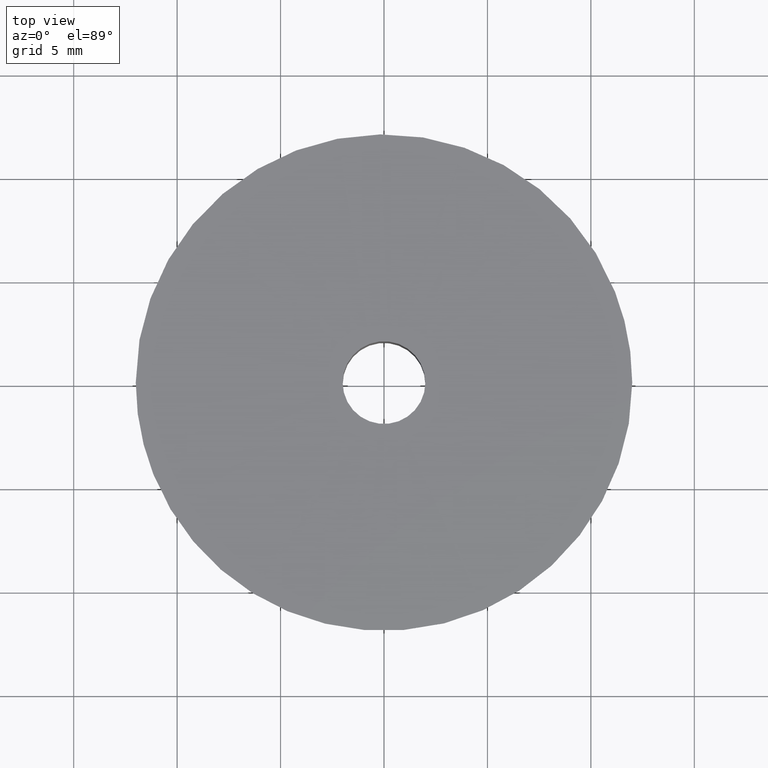
[diagram: clean part render]
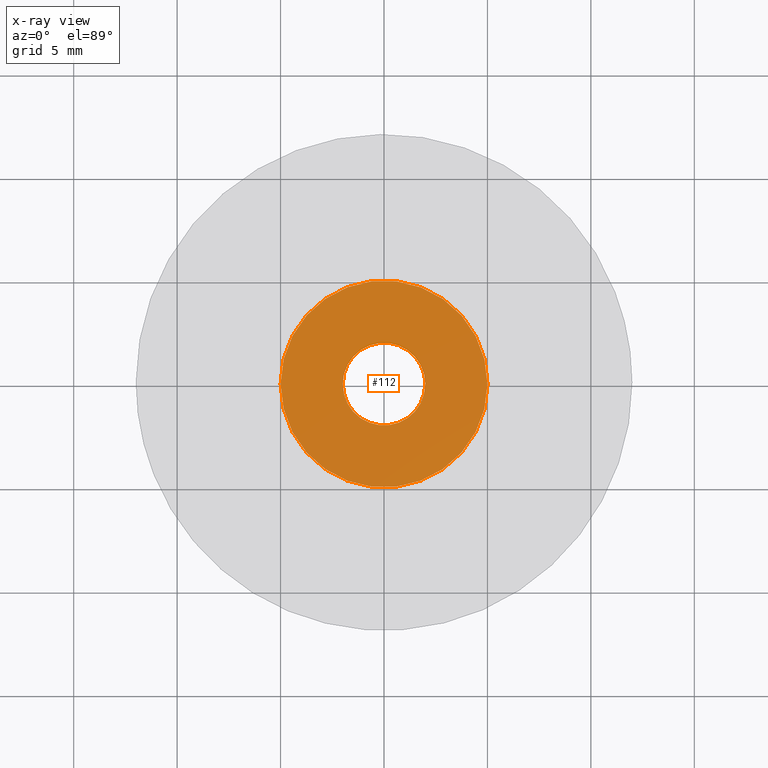
[diagram: x-ray — body ghosted, one internal face saturated and labeled with its STEP entity id]
A machine part, top view, then the same camera in x-ray: the body is ghosted and one INTERNAL B-rep face — a face not visible from any outside direction — is saturated and labeled: STEP entity #112.
In plain terms, the highlighted planar face has unit normal (0, 0, -1).
Its self-contained STEP definition (entity closure, byte-faithful):
#112=ADVANCED_FACE('',(#133,#134),#132,.F.);
#132=PLANE('',#341);
#133=FACE_OUTER_BOUND('',#342,.T.);
#134=FACE_BOUND('',#343,.T.);
#338=CARTESIAN_POINT('',(1.15000000000E+001,-1.03923048454E+001,5.80000000000E+000));
#339=DIRECTION('',(0.00000000000E+000,0.00000000000E+000,-1.00000000000E+000));
#340=DIRECTION('',(-1.00000000000E+000,0.00000000000E+000,0.00000000000E+000));
#341=AXIS2_PLACEMENT_3D('',#338,#339,#340);
#342=EDGE_LOOP('',(#498,#499,#500));
#343=EDGE_LOOP('',(#501,#502,#503));
#498=ORIENTED_EDGE('',*,*,#608,.F.);
#499=ORIENTED_EDGE('',*,*,#609,.F.);
#500=ORIENTED_EDGE('',*,*,#610,.F.);
#501=ORIENTED_EDGE('',*,*,#611,.T.);
#502=ORIENTED_EDGE('',*,*,#612,.T.);
#503=ORIENTED_EDGE('',*,*,#613,.T.);
#608=EDGE_CURVE('',#663,#664,#665,.T.);
#609=EDGE_CURVE('',#671,#663,#672,.T.);
#610=EDGE_CURVE('',#664,#671,#678,.T.);
#611=EDGE_CURVE('',#684,#685,#686,.T.);
#612=EDGE_CURVE('',#685,#692,#693,.T.);
#613=EDGE_CURVE('',#692,#684,#699,.T.);
#663=VERTEX_POINT('',#1034);
#664=VERTEX_POINT('',#1035);
#665=CIRCLE('',#1039,5.00000000000E+000);
#671=VERTEX_POINT('',#1040);
#672=CIRCLE('',#1044,5.00000000000E+000);
#678=CIRCLE('',#1048,5.00000000000E+000);
#684=VERTEX_POINT('',#1049);
#685=VERTEX_POINT('',#1050);
#686=CIRCLE('',#1054,2.00000000002E+000);
#692=VERTEX_POINT('',#1055);
#693=CIRCLE('',#1059,2.00000000002E+000);
#699=CIRCLE('',#1063,2.00000000002E+000);
#1034=CARTESIAN_POINT('',(5.90171136897E-001,-4.96504763614E+000,5.80000000000E+000));
#1035=CARTESIAN_POINT('',(-5.00000000000E+000,-2.55351295664E-015,5.80000000000E+000));
#1036=CARTESIAN_POINT('',(1.75459646812E-012,7.99804666940E-013,5.80000000000E+000));
#1037=DIRECTION('',(1.68384624698E-015,2.00149484258E-016,-1.00000000000E+000));
#1038=DIRECTION('',(-1.00000000000E+000,-1.60094160151E-013,-1.68384624698E-015));
#1039=AXIS2_PLACEMENT_3D('',#1036,#1037,#1038);
#1040=CARTESIAN_POINT('',(-5.91029300183E-001,4.96494555522E+000,5.80000000000E+000));
#1041=CARTESIAN_POINT('',(1.75459646812E-012,7.99804666940E-013,5.80000000000E+000));
#1042=DIRECTION('',(1.68384624698E-015,2.00149484258E-016,-1.00000000000E+000));
#1043=DIRECTION('',(-1.00000000000E+000,-1.60094160151E-013,-1.68384624698E-015));
#1044=AXIS2_PLACEMENT_3D('',#1041,#1042,#1043);
#1045=CARTESIAN_POINT('',(1.75459646812E-012,7.99804666940E-013,5.80000000000E+000));
#1046=DIRECTION('',(1.68384624698E-015,2.00149484258E-016,-1.00000000000E+000));
#1047=DIRECTION('',(-1.00000000000E+000,-1.60094160151E-013,-1.68384624698E-015));
#1048=AXIS2_PLACEMENT_3D('',#1045,#1046,#1047);
#1049=CARTESIAN_POINT('',(-2.00000000004E+000,1.99167500622E-016,5.80000000000E+000));
#1050=CARTESIAN_POINT('',(-2.36411790214E-001,1.98597821378E+000,5.80000000000E+000));
#1051=CARTESIAN_POINT('',(-2.15893969369E-011,2.03093097895E-011,5.80000000000E+000));
#1052=DIRECTION('',(-1.33226762952E-015,1.09906472108E-015,-1.00000000000E+000));
#1053=DIRECTION('',(-1.00000000000E+000,-1.01544328502E-011,1.33226762951E-015));
#1054=AXIS2_PLACEMENT_3D('',#1051,#1052,#1053);
#1055=CARTESIAN_POINT('',(2.36068050828E-001,-1.98601910247E+000,5.80000000000E+000));
#1056=CARTESIAN_POINT('',(-2.15893969369E-011,2.03093097895E-011,5.80000000000E+000));
#1057=DIRECTION('',(-1.33226762952E-015,1.09906472108E-015,-1.00000000000E+000));
#1058=DIRECTION('',(-1.00000000000E+000,-1.01544328502E-011,1.33226762951E-015));
#1059=AXIS2_PLACEMENT_3D('',#1056,#1057,#1058);
#1060=CARTESIAN_POINT('',(-2.15893969369E-011,2.03093097895E-011,5.80000000000E+000));
#1061=DIRECTION('',(-1.33226762952E-015,1.09906472108E-015,-1.00000000000E+000));
#1062=DIRECTION('',(-1.00000000000E+000,-1.01544328502E-011,1.33226762951E-015));
#1063=AXIS2_PLACEMENT_3D('',#1060,#1061,#1062);